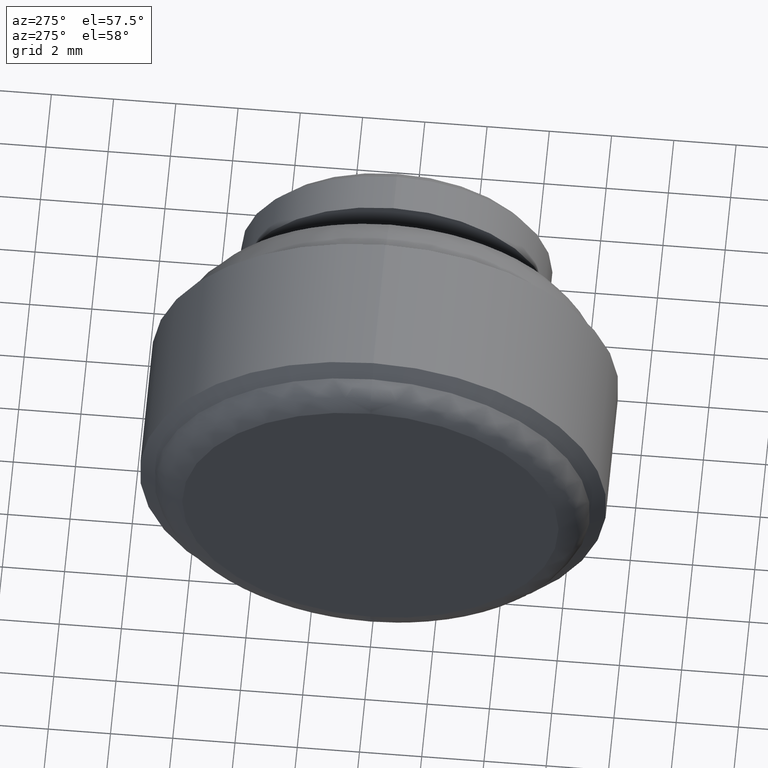
[diagram: clean part render]
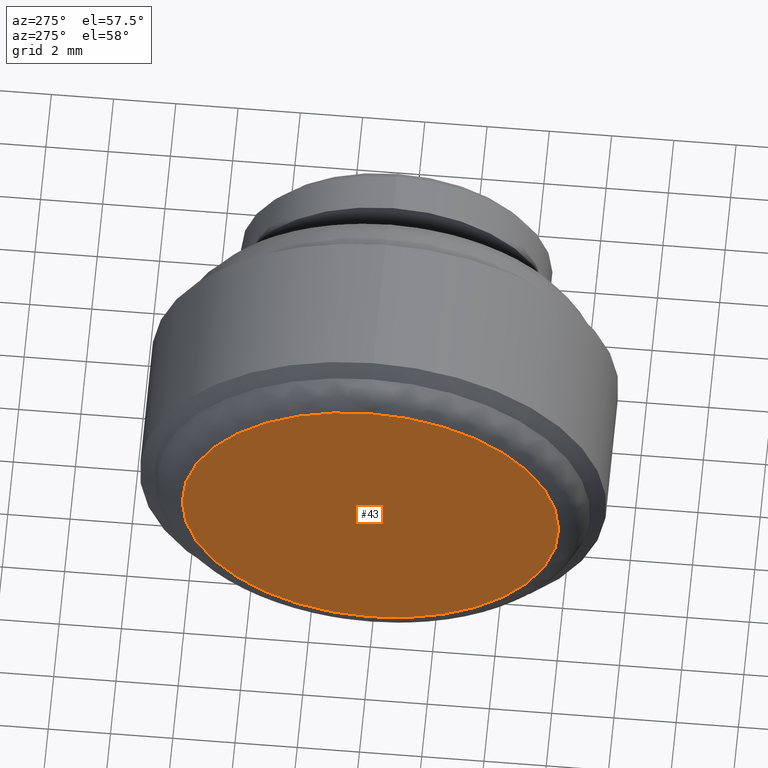
[diagram: same view with one face highlighted and labeled with its STEP entity id]
A machine part, auxiliary view. The second image highlights one B-rep face of the part: STEP entity #43.
In plain terms, the highlighted planar face has unit normal (1, 0, 0).
Its self-contained STEP definition (entity closure, byte-faithful):
#43=ADVANCED_FACE('',(#104),#103,.F.);
#103=PLANE('',#394);
#104=FACE_OUTER_BOUND('',#395,.T.);
#391=CARTESIAN_POINT('',(-1.00000000000E+01,-1.25665828652E+01,7.85993000000E+00));
#392=DIRECTION('',(1.00000000000E+00,0.00000000000E+00,0.00000000000E+00));
#393=DIRECTION('',(0.00000000000E+00,0.00000000000E+00,-1.00000000000E+00));
#394=AXIS2_PLACEMENT_3D('',#391,#392,#393);
#395=EDGE_LOOP('',(#694,#695));
#694=ORIENTED_EDGE('',*,*,#810,.T.);
#695=ORIENTED_EDGE('',*,*,#811,.T.);
#810=EDGE_CURVE('',#940,#941,#942,.T.);
#811=EDGE_CURVE('',#941,#940,#948,.T.);
#940=VERTEX_POINT('',#1297);
#941=VERTEX_POINT('',#1298);
#942=CIRCLE('',#1302,6.04610000000E+00);
#948=CIRCLE('',#1306,6.04610000000E+00);
#1297=CARTESIAN_POINT('',(-1.00000000000E+01,0.00000000000E+00,6.04610000000E+00));
#1298=CARTESIAN_POINT('',(-1.00000000000E+01,0.00000000000E+00,-6.04610000000E+00));
#1299=CARTESIAN_POINT('',(-1.00000000000E+01,0.00000000000E+00,0.00000000000E+00));
#1300=DIRECTION('',(-1.00000000000E+00,0.00000000000E+00,0.00000000000E+00));
#1301=DIRECTION('',(0.00000000000E+00,-1.22460635382E-16,1.00000000000E+00));
#1302=AXIS2_PLACEMENT_3D('',#1299,#1300,#1301);
#1303=CARTESIAN_POINT('',(-1.00000000000E+01,0.00000000000E+00,0.00000000000E+00));
#1304=DIRECTION('',(-1.00000000000E+00,0.00000000000E+00,0.00000000000E+00));
#1305=DIRECTION('',(0.00000000000E+00,-1.22460635382E-16,1.00000000000E+00));
#1306=AXIS2_PLACEMENT_3D('',#1303,#1304,#1305);